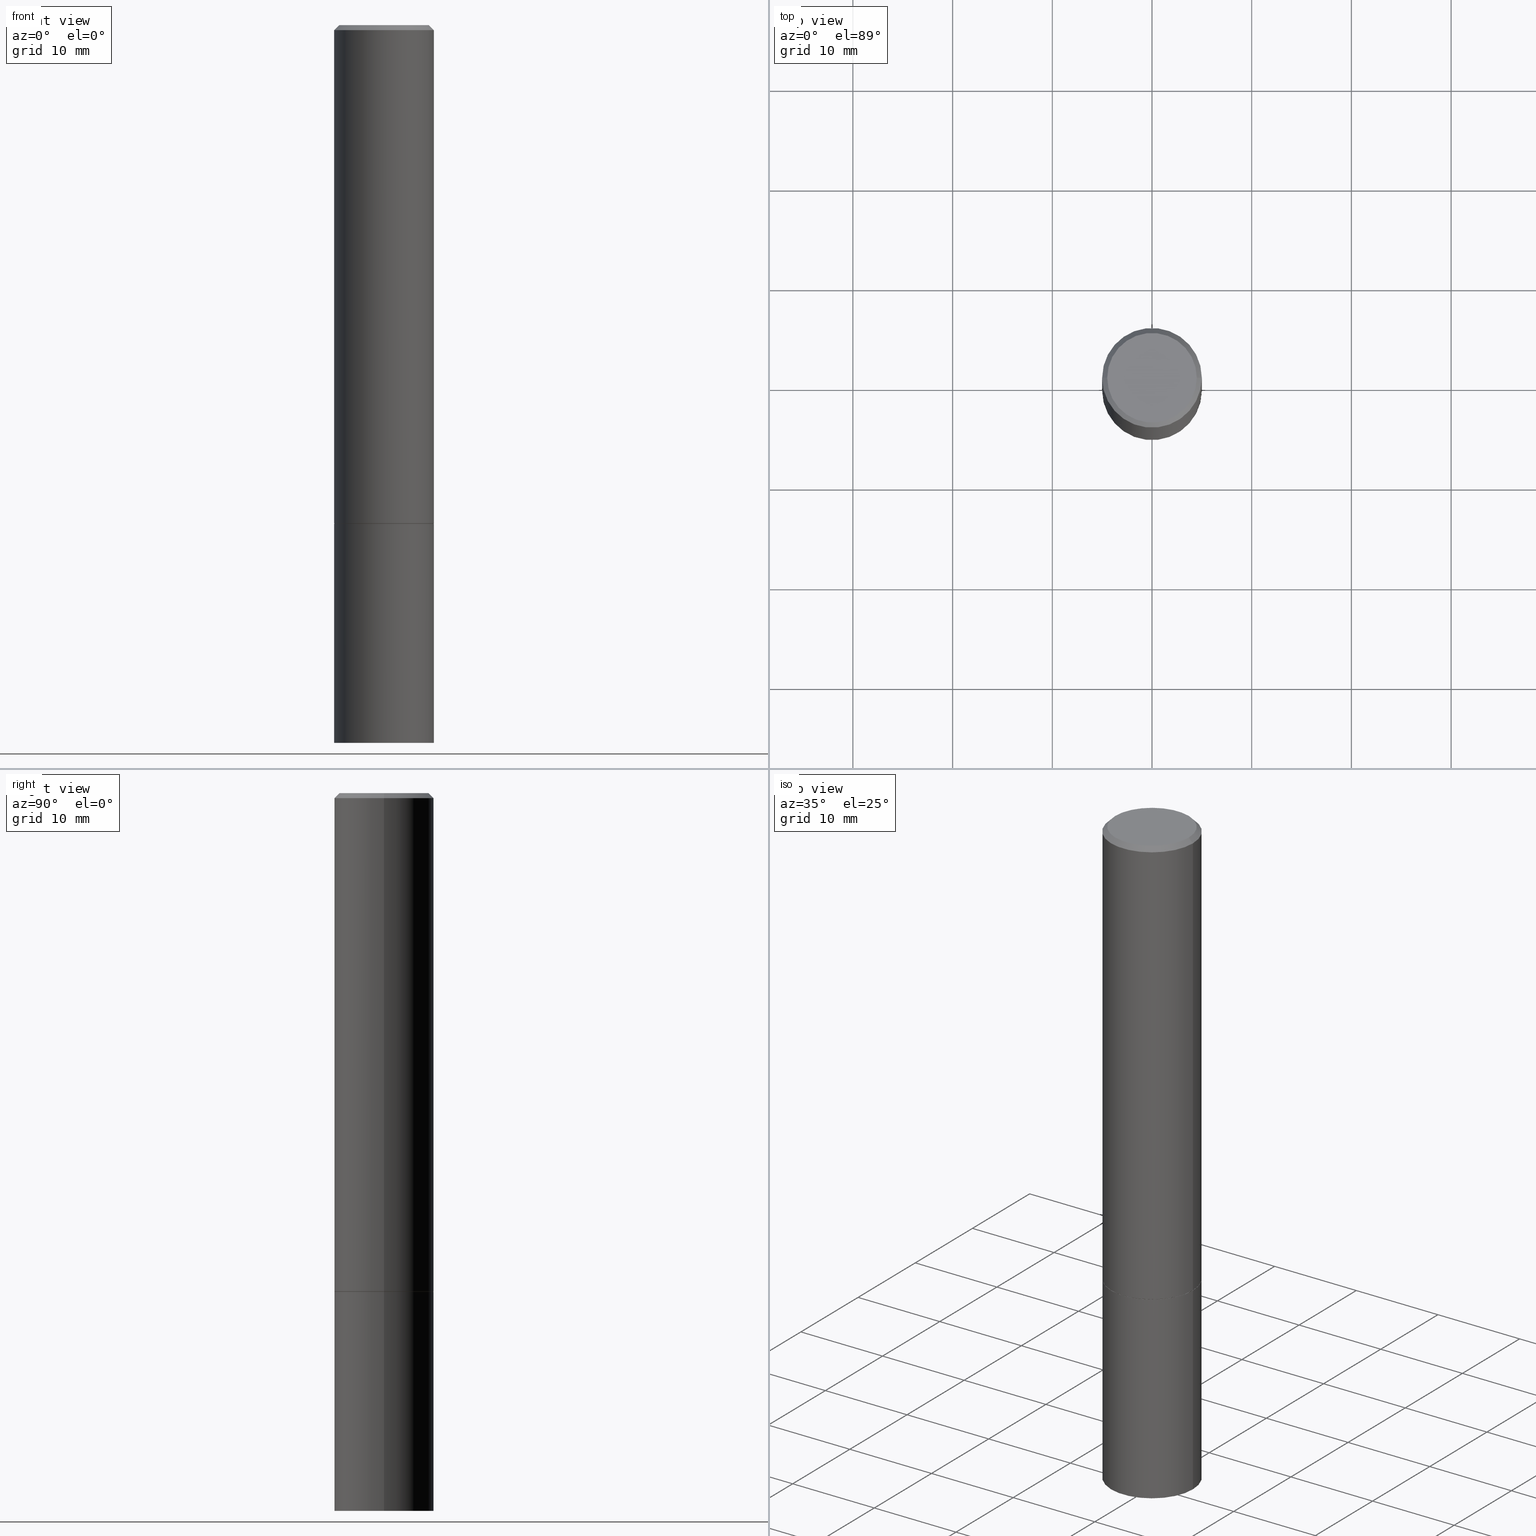
[diagram: canonical four-view strip — front | top / right | iso, engineering-drawing reading convention]
A machine part, canonical four-view strip (front | top / right | iso — engineering-drawing reading convention). The complete STEP part file that produces these views, byte-faithful:
ISO-10303-21;
HEADER;
FILE_DESCRIPTION (( 'STEP AP203' ),
    '1' );
FILE_NAME ('49668.STEP',
    '2024-02-29T00:50:35',
    ( '' ),
    ( '' ),
    'SwSTEP 2.0',
    'SolidWorks 2023',
    '' );
FILE_SCHEMA (( 'CONFIG_CONTROL_DESIGN' ));
ENDSEC;

DATA;
#1 = AXIS2_PLACEMENT_3D ( 'NONE', #68, #38, #275 ) ;
#2 = ORIENTED_EDGE ( 'NONE', *, *, #32, .F. ) ;
#3 = APPROVAL_ROLE ( '' ) ;
#4 = DIRECTION ( 'NONE',  ( 1.000000000000000000, 0.000000000000000000, 0.000000000000000000 ) ) ;
#5 = EDGE_LOOP ( 'NONE', ( #63, #207 ) ) ;
#6 = ORIENTED_EDGE ( 'NONE', *, *, #300, .T. ) ;
#7 = AXIS2_PLACEMENT_3D ( 'NONE', #18, #243, #100 ) ;
#8 = DATE_AND_TIME ( #269, #251 ) ;
#9 = ADVANCED_FACE ( 'NONE', ( #11 ), #43, .F. ) ;
#10 = ORIENTED_EDGE ( 'NONE', *, *, #32, .T. ) ;
#11 = FACE_OUTER_BOUND ( 'NONE', #210, .T. ) ;
#12 = APPROVAL_DATE_TIME ( #95, #277 ) ;
#13 = VERTEX_POINT ( 'NONE', #98 ) ;
#14 = CIRCLE ( 'NONE', #244, 0.1768499999999997019 ) ;
#15 = PERSON_AND_ORGANIZATION ( #254, #308 ) ;
#16 = ORIENTED_EDGE ( 'NONE', *, *, #205, .F. ) ;
#17 = ADVANCED_FACE ( 'NONE', ( #325 ), #163, .T. ) ;
#18 = CARTESIAN_POINT ( 'NONE',  ( 4.890937612370285420E-31, -6.982962677686308865E-17, -0.02000000000000005246 ) ) ;
#19 = ORIENTED_EDGE ( 'NONE', *, *, #362, .F. ) ;
#20 = CIRCLE ( 'NONE', #77, 0.1968500000000000250 ) ;
#21 = CYLINDRICAL_SURFACE ( 'NONE', #240, 0.1968500000000000250 ) ;
#22 = CARTESIAN_POINT ( 'NONE',  ( -0.1968500000000000250, -2.070956205131617028E-15, -1.967500000000000027 ) ) ;
#23 = DIRECTION ( 'NONE',  ( -2.445468806185136597E-29, 3.491481338843145583E-15, 1.000000000000000000 ) ) ;
#24 = VECTOR ( 'NONE', #65, 39.37007874015748854 ) ;
#25 = CARTESIAN_POINT ( 'NONE',  ( 0.1768499999999997019, -1.316798864272040366E-15, 8.537024980209745006E-18 ) ) ;
#26 = CARTESIAN_POINT ( 'NONE',  ( 0.1968499999999997474, -1.420318657638187347E-15, -0.02000000000000005246 ) ) ;
#27 = APPROVAL_ROLE ( '' ) ;
#28 = VERTEX_POINT ( 'NONE', #303 ) ;
#29 = CLOSED_SHELL ( 'NONE', ( #84, #264, #17, #124, #116, #159, #346, #211 ) ) ;
#30 = ORIENTED_EDGE ( 'NONE', *, *, #74, .F. ) ;
#31 = DESIGN_CONTEXT ( 'detailed design', #110, 'design' ) ;
#32 = EDGE_CURVE ( 'NONE', #263, #168, #14, .T. ) ;
#33 = APPROVAL_DATE_TIME ( #295, #61 ) ;
#34 = CLOSED_SHELL ( 'NONE', ( #200, #245, #9, #319 ) ) ;
#35 = PERSON_AND_ORGANIZATION_ROLE ( 'design_supplier' ) ;
#36 = LINE ( 'NONE', #69, #24 ) ;
#37 = SHAPE_DEFINITION_REPRESENTATION ( #351, #49 ) ;
#38 = DIRECTION ( 'NONE',  ( -2.445468806185136597E-29, 3.491481338843145583E-15, 1.000000000000000000 ) ) ;
#39 = PRODUCT ( '49668', '49668', '', ( #231 ) ) ;
#40 = CARTESIAN_POINT ( 'NONE',  ( 4.813905344975441835E-29, -6.872981015512731707E-15, -1.968500000000000139 ) ) ;
#41 = AXIS2_PLACEMENT_3D ( 'NONE', #160, #109, #194 ) ;
#42 = DIRECTION ( 'NONE',  ( 1.000000000000000000, -6.982962677686268288E-15, 4.875932113059886416E-29 ) ) ;
#43 = PLANE ( 'NONE',  #267 ) ;
#44 = LINE ( 'NONE', #53, #274 ) ;
#45 = CIRCLE ( 'NONE', #7, 0.1968499999999997474 ) ;
#46 = DIRECTION ( 'NONE',  ( -2.445468806185136597E-29, 3.491481338843145583E-15, 1.000000000000000000 ) ) ;
#47 = CARTESIAN_POINT ( 'NONE',  ( -0.1968500000000000250, -6.986263633954999297E-15, -1.968500000000000139 ) ) ;
#48 = CARTESIAN_POINT ( 'NONE',  ( 4.811459876169256232E-29, -6.869489534173888700E-15, -1.967500000000000027 ) ) ;
#49 = ADVANCED_BREP_SHAPE_REPRESENTATION ( '49668', ( #83, #322, #222 ), #259 ) ;
#50 = EDGE_CURVE ( 'NONE', #182, #175, #36, .T. ) ;
#51 = CIRCLE ( 'NONE', #250, 0.1968500000000000250 ) ;
#52 = VECTOR ( 'NONE', #85, 39.37007874015748143 ) ;
#53 = CARTESIAN_POINT ( 'NONE',  ( 0.1968499999999997474, -1.420318657638187347E-15, -0.02000000000000005246 ) ) ;
#54 = LENGTH_MEASURE_WITH_UNIT ( LENGTH_MEASURE( 0.02539999999999999897 ), #366 );
#55 = APPROVAL_STATUS ( 'not_yet_approved' ) ;
#56 = DIRECTION ( 'NONE',  ( 1.000000000000000000, -6.982962677686265922E-15, 4.876176775795935793E-29 ) ) ;
#57 = CONICAL_SURFACE ( 'NONE', #66, 0.1958499999999999963, 0.7853981633974141952 ) ;
#58 = AXIS2_PLACEMENT_3D ( 'NONE', #99, #96, #304 ) ;
#59 = DIRECTION ( 'NONE',  ( -2.445468806185136597E-29, 3.491481338843145583E-15, 1.000000000000000000 ) ) ;
#60 = EDGE_LOOP ( 'NONE', ( #90, #270, #155, #338 ) ) ;
#61 = APPROVAL ( #55, 'UNSPECIFIED' ) ;
#62 = CALENDAR_DATE ( 2024, 28, 2 ) ;
#63 = ORIENTED_EDGE ( 'NONE', *, *, #97, .F. ) ;
#64 = PERSON_AND_ORGANIZATION_ROLE ( 'creator' ) ;
#65 = DIRECTION ( 'NONE',  ( -0.7071067811865232589, 7.493145998870265808E-15, 0.7071067811865715536 ) ) ;
#66 = AXIS2_PLACEMENT_3D ( 'NONE', #156, #216, #298 ) ;
#67 = CC_DESIGN_APPROVAL ( #365, ( #356 ) ) ;
#68 = CARTESIAN_POINT ( 'NONE',  ( 4.813905344975441835E-29, -6.872981015512731707E-15, -1.968500000000000139 ) ) ;
#69 = CARTESIAN_POINT ( 'NONE',  ( -0.1958499999999999963, -5.481383067526575717E-15, -1.968500000000000139 ) ) ;
#70 = DIRECTION ( 'NONE',  ( -2.445468806185136597E-29, 3.491481338843145583E-15, 1.000000000000000000 ) ) ;
#71 = AXIS2_PLACEMENT_3D ( 'NONE', #40, #357, #123 ) ;
#72 = LOCAL_TIME ( 19, 50, 35.00000000000000000, #178 ) ;
#73 = DIRECTION ( 'NONE',  ( -2.445468806185136877E-29, 3.491481338843145188E-15, 1.000000000000000000 ) ) ;
#74 = EDGE_CURVE ( 'NONE', #113, #294, #185, .T. ) ;
#75 = DIRECTION ( 'NONE',  ( 1.000000000000000000, -6.982962677686268288E-15, 4.875932113059886416E-29 ) ) ;
#76 = LINE ( 'NONE', #135, #258 ) ;
#77 = AXIS2_PLACEMENT_3D ( 'NONE', #48, #162, #166 ) ;
#78 = DIRECTION ( 'NONE',  ( -2.445468806185136597E-29, 3.491481338843145583E-15, 1.000000000000000000 ) ) ;
#79 = CARTESIAN_POINT ( 'NONE',  ( 4.813905344975441835E-29, -6.872981015512731707E-15, -1.968500000000000139 ) ) ;
#80 = DIRECTION ( 'NONE',  ( -2.445468806185136597E-29, 3.491481338843145583E-15, 1.000000000000000000 ) ) ;
#81 = CIRCLE ( 'NONE', #221, 0.1958499999999999963 ) ;
#82 = PERSON_AND_ORGANIZATION ( #254, #308 ) ;
#83 = MANIFOLD_SOLID_BREP ( 'Body-Move/Copy2[1]', #34 ) ;
#84 = ADVANCED_FACE ( 'NONE', ( #276 ), #158, .T. ) ;
#85 = DIRECTION ( 'NONE',  ( -2.445468806185136877E-29, 3.491481338843145188E-15, 1.000000000000000000 ) ) ;
#86 = ORIENTED_EDGE ( 'NONE', *, *, #252, .T. ) ;
#87 = PLANE ( 'NONE',  #187 ) ;
#88 = ORIENTED_EDGE ( 'NONE', *, *, #50, .T. ) ;
#89 = CARTESIAN_POINT ( 'NONE',  ( -0.1968500000000000250, -6.986263633954999297E-15, -2.834600000000000009 ) ) ;
#90 = ORIENTED_EDGE ( 'NONE', *, *, #287, .F. ) ;
#91 = COORDINATED_UNIVERSAL_TIME_OFFSET ( 5, 0, .BEHIND. ) ;
#92 = ORIENTED_EDGE ( 'NONE', *, *, #359, .F. ) ;
#93 = COORDINATED_UNIVERSAL_TIME_OFFSET ( 5, 0, .BEHIND. ) ;
#94 = ORIENTED_EDGE ( 'NONE', *, *, #138, .T. ) ;
#95 = DATE_AND_TIME ( #181, #233 ) ;
#96 = DIRECTION ( 'NONE',  ( 2.445468806185136597E-29, -3.491481338843145583E-15, -1.000000000000000000 ) ) ;
#97 = EDGE_CURVE ( 'NONE', #266, #182, #81, .T. ) ;
#98 = CARTESIAN_POINT ( 'NONE',  ( 0.1968500000000000250, -1.127154920618732249E-14, -2.834600000000000009 ) ) ;
#99 = CARTESIAN_POINT ( 'NONE',  ( 4.890937612370285420E-31, -6.982962677686308865E-17, -0.02000000000000005246 ) ) ;
#100 = DIRECTION ( 'NONE',  ( 1.000000000000000000, -6.982962677686266711E-15, 0.000000000000000000 ) ) ;
#101 = AXIS2_PLACEMENT_3D ( 'NONE', #223, #253, #330 ) ;
#102 = CC_DESIGN_APPROVAL ( #277, ( #317 ) ) ;
#103 = CARTESIAN_POINT ( 'NONE',  ( 0.1968500000000000250, -8.247577218615273316E-15, -1.968500000000000139 ) ) ;
#104 = DIRECTION ( 'NONE',  ( 1.000000000000000000, -6.982962677686265922E-15, 4.876176775795935793E-29 ) ) ;
#105 = FACE_OUTER_BOUND ( 'NONE', #131, .T. ) ;
#106 = AXIS2_PLACEMENT_3D ( 'NONE', #364, #360, #75 ) ;
#107 = CC_DESIGN_DATE_AND_TIME_ASSIGNMENT ( #206, #125, ( #356 ) ) ;
#108 = FACE_OUTER_BOUND ( 'NONE', #329, .T. ) ;
#109 = DIRECTION ( 'NONE',  ( -2.445468806185136597E-29, 3.491481338843145583E-15, 1.000000000000000000 ) ) ;
#110 = APPLICATION_CONTEXT ( 'configuration controlled 3d designs of mechanical parts and assemblies' ) ;
#111 = CARTESIAN_POINT ( 'NONE',  ( 0.000000000000000000, 0.000000000000000000, 0.000000000000000000 ) ) ;
#112 = CARTESIAN_POINT ( 'NONE',  ( 0.1968500000000000250, -1.374596203102541608E-15, 9.598753983154300858E-30 ) ) ;
#113 = VERTEX_POINT ( 'NONE', #103 ) ;
#114 = DIRECTION ( 'NONE',  ( 1.000000000000000000, -6.982962677686266711E-15, 0.000000000000000000 ) ) ;
#115 = ORIENTED_EDGE ( 'NONE', *, *, #74, .T. ) ;
#116 = ADVANCED_FACE ( 'NONE', ( #347 ), #151, .T. ) ;
#117 = APPLICATION_PROTOCOL_DEFINITION ( 'international standard', 'config_control_design', 1994, #110 ) ;
#118 = CIRCLE ( 'NONE', #106, 0.1768499999999997019 ) ;
#119 = LOCAL_TIME ( 19, 50, 35.00000000000000000, #93 ) ;
#120 = EDGE_LOOP ( 'NONE', ( #228, #86, #122, #230 ) ) ;
#121 = PERSON_AND_ORGANIZATION ( #254, #308 ) ;
#122 = ORIENTED_EDGE ( 'NONE', *, *, #332, .T. ) ;
#123 = DIRECTION ( 'NONE',  ( 1.000000000000000000, -6.982962677686267499E-15, 0.000000000000000000 ) ) ;
#124 = ADVANCED_FACE ( 'NONE', ( #352 ), #342, .T. ) ;
#125 = DATE_TIME_ROLE ( 'classification_date' ) ;
#126 = ORIENTED_EDGE ( 'NONE', *, *, #224, .T. ) ;
#127 = AXIS2_PLACEMENT_3D ( 'NONE', #79, #78, #280 ) ;
#128 = CC_DESIGN_APPROVAL ( #61, ( #130 ) ) ;
#129 = DIRECTION ( 'NONE',  ( -2.445468806185136597E-29, 3.491481338843145583E-15, 1.000000000000000000 ) ) ;
#130 = PRODUCT_DEFINITION ( 'UNKNOWN', '', #317, #31 ) ;
#131 = EDGE_LOOP ( 'NONE', ( #209, #289 ) ) ;
#132 = ORIENTED_EDGE ( 'NONE', *, *, #217, .T. ) ;
#133 = CIRCLE ( 'NONE', #41, 0.1968500000000000250 ) ;
#134 = CARTESIAN_POINT ( 'NONE',  ( 0.000000000000000000, 0.000000000000000000, 0.000000000000000000 ) ) ;
#135 = CARTESIAN_POINT ( 'NONE',  ( 0.1958499999999999963, -8.240594255937587301E-15, -1.968500000000000139 ) ) ;
#136 = CARTESIAN_POINT ( 'NONE',  ( 6.931925878012387517E-29, -9.896953003084780885E-15, -2.834600000000000009 ) ) ;
#137 = PLANE ( 'NONE',  #101 ) ;
#138 = EDGE_CURVE ( 'NONE', #28, #236, #45, .T. ) ;
#139 = DIRECTION ( 'NONE',  ( -2.445468806185136597E-29, 3.491481338843145583E-15, 1.000000000000000000 ) ) ;
#140 = COORDINATED_UNIVERSAL_TIME_OFFSET ( 5, 0, .BEHIND. ) ;
#141 = AXIS2_PLACEMENT_3D ( 'NONE', #293, #59, #114 ) ;
#142 = PERSON_AND_ORGANIZATION ( #254, #308 ) ;
#143 = ORIENTED_EDGE ( 'NONE', *, *, #235, .T. ) ;
#144 = DIRECTION ( 'NONE',  ( -2.445468806185136877E-29, 3.491481338843145188E-15, 1.000000000000000000 ) ) ;
#145 = EDGE_LOOP ( 'NONE', ( #246, #88, #343, #301 ) ) ;
#146 = PERSON_AND_ORGANIZATION_ROLE ( 'creator' ) ;
#147 = AXIS2_PLACEMENT_3D ( 'NONE', #136, #46, #249 ) ;
#148 = DATE_AND_TIME ( #299, #72 ) ;
#149 = EDGE_CURVE ( 'NONE', #175, #28, #215, .T. ) ;
#150 = DIRECTION ( 'NONE',  ( 2.438088387897960049E-29, -3.491481338843145188E-15, -1.000000000000000000 ) ) ;
#151 = CYLINDRICAL_SURFACE ( 'NONE', #214, 0.1968499999999998862 ) ;
#152 = AXIS2_PLACEMENT_3D ( 'NONE', #111, #139, #255 ) ;
#153 = ORIENTED_EDGE ( 'NONE', *, *, #252, .F. ) ;
#154 = APPROVAL_STATUS ( 'not_yet_approved' ) ;
#155 = ORIENTED_EDGE ( 'NONE', *, *, #353, .T. ) ;
#156 = CARTESIAN_POINT ( 'NONE',  ( 4.813905344975441835E-29, -6.872981015512731707E-15, -1.968500000000000139 ) ) ;
#157 = DIRECTION ( 'NONE',  ( 1.000000000000000000, -6.982962677686267499E-15, 0.000000000000000000 ) ) ;
#158 = CONICAL_SURFACE ( 'NONE', #1, 0.1958499999999999963, 0.7853981633974141952 ) ;
#159 = ADVANCED_FACE ( 'NONE', ( #190 ), #57, .T. ) ;
#160 = CARTESIAN_POINT ( 'NONE',  ( 6.931925878012387517E-29, -9.896953003084780885E-15, -2.834600000000000009 ) ) ;
#161 = CARTESIAN_POINT ( 'NONE',  ( -0.1958499999999999963, -5.476084613178353315E-15, -1.968500000000000139 ) ) ;
#162 = DIRECTION ( 'NONE',  ( -2.445468806185136597E-29, 3.491481338843145583E-15, 1.000000000000000000 ) ) ;
#163 = CONICAL_SURFACE ( 'NONE', #170, 0.1968499999999997474, 0.7853981633974473908 ) ;
#164 = CC_DESIGN_PERSON_AND_ORGANIZATION_ASSIGNMENT ( #167, #146, ( #130 ) ) ;
#165 = APPROVAL_PERSON_ORGANIZATION ( #142, #61, #3 ) ;
#166 = DIRECTION ( 'NONE',  ( 1.000000000000000000, -6.982962677686267499E-15, 0.000000000000000000 ) ) ;
#167 = PERSON_AND_ORGANIZATION ( #254, #308 ) ;
#168 = VERTEX_POINT ( 'NONE', #25 ) ;
#169 = APPLICATION_PROTOCOL_DEFINITION ( 'international standard', 'config_control_design', 1994, #272 ) ;
#170 = AXIS2_PLACEMENT_3D ( 'NONE', #183, #241, #327 ) ;
#171 = EDGE_LOOP ( 'NONE', ( #320, #143, #132, #153 ) ) ;
#172 = CC_DESIGN_PERSON_AND_ORGANIZATION_ASSIGNMENT ( #324, #64, ( #317 ) ) ;
#173 = DIMENSIONAL_EXPONENTS ( 1.000000000000000000, 0.000000000000000000, 0.000000000000000000, 0.000000000000000000, 0.000000000000000000, 0.000000000000000000, 0.000000000000000000 ) ;
#174 = DIRECTION ( 'NONE',  ( -2.445468806185136877E-29, 3.491481338843145188E-15, 1.000000000000000000 ) ) ;
#175 = VERTEX_POINT ( 'NONE', #22 ) ;
#176 = CARTESIAN_POINT ( 'NONE',  ( 0.000000000000000000, 0.000000000000000000, 0.000000000000000000 ) ) ;
#177 = EDGE_LOOP ( 'NONE', ( #126, #292, #30, #92 ) ) ;
#178 = COORDINATED_UNIVERSAL_TIME_OFFSET ( 5, 0, .BEHIND. ) ;
#179 = CIRCLE ( 'NONE', #284, 0.1968500000000000250 ) ;
#180 = DIRECTION ( 'NONE',  ( -2.445468806185136597E-29, 3.491481338843145583E-15, 1.000000000000000000 ) ) ;
#181 = CALENDAR_DATE ( 2024, 28, 2 ) ;
#182 = VERTEX_POINT ( 'NONE', #161 ) ;
#183 = CARTESIAN_POINT ( 'NONE',  ( 4.890937612370285420E-31, -6.982962677686308865E-17, -0.02000000000000005246 ) ) ;
#184 = SECURITY_CLASSIFICATION_LEVEL ( 'unclassified' ) ;
#185 = CIRCLE ( 'NONE', #71, 0.1968500000000000250 ) ;
#186 = DIRECTION ( 'NONE',  ( 1.000000000000000000, -6.982962677686268288E-15, 0.000000000000000000 ) ) ;
#187 = AXIS2_PLACEMENT_3D ( 'NONE', #314, #234, #56 ) ;
#188 = EDGE_CURVE ( 'NONE', #263, #28, #220, .T. ) ;
#189 = APPROVAL_DATE_TIME ( #148, #365 ) ;
#190 = FACE_OUTER_BOUND ( 'NONE', #171, .T. ) ;
#191 = CARTESIAN_POINT ( 'NONE',  ( 4.813905344975441835E-29, -6.872981015512731707E-15, -1.968500000000000139 ) ) ;
#192 = CARTESIAN_POINT ( 'NONE',  ( 0.1958499999999999963, -8.240594255937587301E-15, -1.968500000000000139 ) ) ;
#193 = DIRECTION ( 'NONE',  ( -1.000000000000000000, 6.982962677686265922E-15, -4.876176775795935793E-29 ) ) ;
#194 = DIRECTION ( 'NONE',  ( 1.000000000000000000, -6.982962677686267499E-15, 0.000000000000000000 ) ) ;
#195 = CC_DESIGN_PERSON_AND_ORGANIZATION_ASSIGNMENT ( #256, #260, ( #39 ) ) ;
#196 = CYLINDRICAL_SURFACE ( 'NONE', #152, 0.1968499999999998862 ) ;
#197 = CC_DESIGN_SECURITY_CLASSIFICATION ( #356, ( #317 ) ) ;
#198 = LINE ( 'NONE', #112, #297 ) ;
#199 = LINE ( 'NONE', #315, #291 ) ;
#200 = ADVANCED_FACE ( 'NONE', ( #286 ), #333, .T. ) ;
#201 = EDGE_LOOP ( 'NONE', ( #19, #340, #316, #323 ) ) ;
#202 = EDGE_LOOP ( 'NONE', ( #321, #350, #204, #341 ) ) ;
#203 = UNCERTAINTY_MEASURE_WITH_UNIT (LENGTH_MEASURE( 1.000000000000000082E-05 ), #229, 'distance_accuracy_value', 'NONE');
#204 = ORIENTED_EDGE ( 'NONE', *, *, #353, .F. ) ;
#205 = EDGE_CURVE ( 'NONE', #168, #236, #44, .T. ) ;
#206 = DATE_AND_TIME ( #213, #119 ) ;
#207 = ORIENTED_EDGE ( 'NONE', *, *, #235, .F. ) ;
#208 = APPROVAL_PERSON_ORGANIZATION ( #82, #277, #27 ) ;
#209 = ORIENTED_EDGE ( 'NONE', *, *, #224, .F. ) ;
#210 = EDGE_LOOP ( 'NONE', ( #115, #6 ) ) ;
#211 = ADVANCED_FACE ( 'NONE', ( #108 ), #137, .F. ) ;
#212 = VERTEX_POINT ( 'NONE', #334 ) ;
#213 = CALENDAR_DATE ( 2024, 28, 2 ) ;
#214 = AXIS2_PLACEMENT_3D ( 'NONE', #273, #129, #242 ) ;
#215 = LINE ( 'NONE', #305, #296 ) ;
#216 = DIRECTION ( 'NONE',  ( -2.445468806185136597E-29, 3.491481338843145583E-15, 1.000000000000000000 ) ) ;
#217 = EDGE_CURVE ( 'NONE', #266, #212, #76, .T. ) ;
#218 = CC_DESIGN_PERSON_AND_ORGANIZATION_ASSIGNMENT ( #121, #35, ( #317 ) ) ;
#219 = DIRECTION ( 'NONE',  ( -0.7071067811865469066, 2.468850131082250355E-15, -0.7071067811865481278 ) ) ;
#220 = LINE ( 'NONE', #361, #348 ) ;
#221 = AXIS2_PLACEMENT_3D ( 'NONE', #238, #180, #186 ) ;
#222 = AXIS2_PLACEMENT_3D ( 'NONE', #176, #262, #4 ) ;
#223 = CARTESIAN_POINT ( 'NONE',  ( 1.234936949548814026E-15, 0.1768499999999997019, -6.131999622843089528E-16 ) ) ;
#224 = EDGE_CURVE ( 'NONE', #13, #345, #133, .T. ) ;
#225 = CARTESIAN_POINT ( 'NONE',  ( 1.374596203102610831E-15, 0.1968499999999901162, -2.834600000000000453 ) ) ;
#226 = COORDINATED_UNIVERSAL_TIME_OFFSET ( 5, 0, .BEHIND. ) ;
#227 = FACE_OUTER_BOUND ( 'NONE', #5, .T. ) ;
#228 = ORIENTED_EDGE ( 'NONE', *, *, #149, .F. ) ;
#229 =( CONVERSION_BASED_UNIT ( 'INCH', #54 ) LENGTH_UNIT ( ) NAMED_UNIT ( #173 ) );
#230 = ORIENTED_EDGE ( 'NONE', *, *, #138, .F. ) ;
#231 = MECHANICAL_CONTEXT ( 'NONE', #272, 'mechanical' ) ;
#232 = AXIS2_PLACEMENT_3D ( 'NONE', #311, #80, #104 ) ;
#233 = LOCAL_TIME ( 19, 50, 35.00000000000000000, #140 ) ;
#234 = DIRECTION ( 'NONE',  ( -2.438088387897960049E-29, 3.491481338843145188E-15, 1.000000000000000000 ) ) ;
#235 = EDGE_CURVE ( 'NONE', #182, #266, #239, .T. ) ;
#236 = VERTEX_POINT ( 'NONE', #26 ) ;
#237 = ORIENTED_EDGE ( 'NONE', *, *, #287, .T. ) ;
#238 = CARTESIAN_POINT ( 'NONE',  ( 4.813905344975441835E-29, -6.872981015512731707E-15, -1.968500000000000139 ) ) ;
#239 = CIRCLE ( 'NONE', #127, 0.1958499999999999963 ) ;
#240 = AXIS2_PLACEMENT_3D ( 'NONE', #134, #23, #331 ) ;
#241 = DIRECTION ( 'NONE',  ( 2.445468806185136597E-29, -3.491481338843145583E-15, -1.000000000000000000 ) ) ;
#242 = DIRECTION ( 'NONE',  ( 1.000000000000000000, -6.982962677686266711E-15, 4.876176775795935793E-29 ) ) ;
#243 = DIRECTION ( 'NONE',  ( -2.445468806185136597E-29, 3.491481338843145583E-15, 1.000000000000000000 ) ) ;
#244 = AXIS2_PLACEMENT_3D ( 'NONE', #271, #70, #42 ) ;
#245 = ADVANCED_FACE ( 'NONE', ( #105 ), #335, .T. ) ;
#246 = ORIENTED_EDGE ( 'NONE', *, *, #97, .T. ) ;
#247 = DIRECTION ( 'NONE',  ( 0.7071067811865232589, -2.468850131082003836E-15, 0.7071067811865715536 ) ) ;
#248 = CARTESIAN_POINT ( 'NONE',  ( 4.811459876169256232E-29, -6.869489534173888700E-15, -1.967500000000000027 ) ) ;
#249 = DIRECTION ( 'NONE',  ( 1.000000000000000000, -6.982962677686267499E-15, 0.000000000000000000 ) ) ;
#250 = AXIS2_PLACEMENT_3D ( 'NONE', #191, #306, #157 ) ;
#251 = LOCAL_TIME ( 19, 50, 35.00000000000000000, #226 ) ;
#252 = EDGE_CURVE ( 'NONE', #175, #212, #179, .T. ) ;
#253 = DIRECTION ( 'NONE',  ( 2.438088387897960049E-29, -3.491481338843145188E-15, -1.000000000000000000 ) ) ;
#254 = PERSON ( 'UNSPECIFIED', 'UNSPECIFIED', 'UNSPECIFIED', ('UNSPECIFIED'), ('UNSPECIFIED'), ('UNSPECIFIED') ) ;
#255 = DIRECTION ( 'NONE',  ( 1.000000000000000000, -6.982962677686266711E-15, 4.876176775795935793E-29 ) ) ;
#256 = PERSON_AND_ORGANIZATION ( #254, #308 ) ;
#257 = EDGE_CURVE ( 'NONE', #212, #175, #20, .T. ) ;
#258 = VECTOR ( 'NONE', #247, 39.37007874015748854 ) ;
#259 =( GEOMETRIC_REPRESENTATION_CONTEXT ( 3 ) GLOBAL_UNCERTAINTY_ASSIGNED_CONTEXT ( ( #203 ) ) GLOBAL_UNIT_ASSIGNED_CONTEXT ( ( #229, #265, #318 ) ) REPRESENTATION_CONTEXT ( 'NONE', 'WORKASPACE' ) );
#260 = PERSON_AND_ORGANIZATION_ROLE ( 'design_owner' ) ;
#261 = EDGE_LOOP ( 'NONE', ( #16, #2, #290, #94 ) ) ;
#262 = DIRECTION ( 'NONE',  ( 0.000000000000000000, 0.000000000000000000, 1.000000000000000000 ) ) ;
#263 = VERTEX_POINT ( 'NONE', #363 ) ;
#264 = ADVANCED_FACE ( 'NONE', ( #283 ), #196, .T. ) ;
#265 =( NAMED_UNIT ( * ) PLANE_ANGLE_UNIT ( ) SI_UNIT ( $, .RADIAN. ) );
#266 = VERTEX_POINT ( 'NONE', #192 ) ;
#267 = AXIS2_PLACEMENT_3D ( 'NONE', #354, #150, #279 ) ;
#268 = APPROVAL_PERSON_ORGANIZATION ( #349, #365, #302 ) ;
#269 = CALENDAR_DATE ( 2024, 28, 2 ) ;
#270 = ORIENTED_EDGE ( 'NONE', *, *, #205, .T. ) ;
#271 = CARTESIAN_POINT ( 'NONE',  ( -2.087702828670439639E-46, 2.980686340760894400E-32, 8.537024980200822558E-18 ) ) ;
#272 = APPLICATION_CONTEXT ( 'configuration controlled 3d designs of mechanical parts and assemblies' ) ;
#273 = CARTESIAN_POINT ( 'NONE',  ( 0.000000000000000000, 0.000000000000000000, 0.000000000000000000 ) ) ;
#274 = VECTOR ( 'NONE', #282, 39.37007874015748143 ) ;
#275 = DIRECTION ( 'NONE',  ( 1.000000000000000000, -6.982962677686268288E-15, 0.000000000000000000 ) ) ;
#276 = FACE_OUTER_BOUND ( 'NONE', #145, .T. ) ;
#277 = APPROVAL ( #288, 'UNSPECIFIED' ) ;
#278 = PRODUCT_RELATED_PRODUCT_CATEGORY ( 'detail', '', ( #39 ) ) ;
#279 = DIRECTION ( 'NONE',  ( -1.000000000000000000, 6.982962677686265922E-15, -4.876176775795935793E-29 ) ) ;
#280 = DIRECTION ( 'NONE',  ( 1.000000000000000000, -6.982962677686268288E-15, 0.000000000000000000 ) ) ;
#281 = LINE ( 'NONE', #339, #52 ) ;
#282 = DIRECTION ( 'NONE',  ( 0.7071067811865469066, -7.319954787623254468E-15, -0.7071067811865481278 ) ) ;
#283 = FACE_OUTER_BOUND ( 'NONE', #202, .T. ) ;
#284 = AXIS2_PLACEMENT_3D ( 'NONE', #248, #310, #309 ) ;
#285 = LOCAL_TIME ( 19, 50, 35.00000000000000000, #91 ) ;
#286 = FACE_OUTER_BOUND ( 'NONE', #177, .T. ) ;
#287 = EDGE_CURVE ( 'NONE', #168, #263, #118, .T. ) ;
#288 = APPROVAL_STATUS ( 'not_yet_approved' ) ;
#289 = ORIENTED_EDGE ( 'NONE', *, *, #326, .F. ) ;
#290 = ORIENTED_EDGE ( 'NONE', *, *, #188, .T. ) ;
#291 = VECTOR ( 'NONE', #174, 39.37007874015748143 ) ;
#292 = ORIENTED_EDGE ( 'NONE', *, *, #362, .T. ) ;
#293 = CARTESIAN_POINT ( 'NONE',  ( 4.890937612370285420E-31, -6.982962677686308865E-17, -0.02000000000000005246 ) ) ;
#294 = VERTEX_POINT ( 'NONE', #47 ) ;
#295 = DATE_AND_TIME ( #62, #285 ) ;
#296 = VECTOR ( 'NONE', #73, 39.37007874015748143 ) ;
#297 = VECTOR ( 'NONE', #144, 39.37007874015748143 ) ;
#298 = DIRECTION ( 'NONE',  ( 1.000000000000000000, -6.982962677686268288E-15, 0.000000000000000000 ) ) ;
#299 = CALENDAR_DATE ( 2024, 28, 2 ) ;
#300 = EDGE_CURVE ( 'NONE', #294, #113, #51, .T. ) ;
#301 = ORIENTED_EDGE ( 'NONE', *, *, #217, .F. ) ;
#302 = APPROVAL_ROLE ( '' ) ;
#303 = CARTESIAN_POINT ( 'NONE',  ( -0.1968499999999997474, 1.304766576325676732E-15, -0.02000000000000005246 ) ) ;
#304 = DIRECTION ( 'NONE',  ( -1.000000000000000000, 6.982962677686266711E-15, 0.000000000000000000 ) ) ;
#305 = CARTESIAN_POINT ( 'NONE',  ( -0.1968499999999998862, 1.398703375343756407E-15, -9.682923725166776671E-30 ) ) ;
#306 = DIRECTION ( 'NONE',  ( -2.445468806185136597E-29, 3.491481338843145583E-15, 1.000000000000000000 ) ) ;
#307 = FACE_OUTER_BOUND ( 'NONE', #201, .T. ) ;
#308 = ORGANIZATION ( 'UNSPECIFIED', 'UNSPECIFIED', '' ) ;
#309 = DIRECTION ( 'NONE',  ( 1.000000000000000000, -6.982962677686267499E-15, 0.000000000000000000 ) ) ;
#310 = DIRECTION ( 'NONE',  ( -2.445468806185136597E-29, 3.491481338843145583E-15, 1.000000000000000000 ) ) ;
#311 = CARTESIAN_POINT ( 'NONE',  ( 0.000000000000000000, 0.000000000000000000, 0.000000000000000000 ) ) ;
#312 = AXIS2_PLACEMENT_3D ( 'NONE', #225, #358, #193 ) ;
#313 = CIRCLE ( 'NONE', #141, 0.1968499999999997474 ) ;
#314 = CARTESIAN_POINT ( 'NONE',  ( 4.813905344975441835E-29, -6.872981015512731707E-15, -1.968500000000000139 ) ) ;
#315 = CARTESIAN_POINT ( 'NONE',  ( -0.1968500000000000250, 1.398703375343757393E-15, -9.682923725166783677E-30 ) ) ;
#316 = ORIENTED_EDGE ( 'NONE', *, *, #359, .T. ) ;
#317 = PRODUCT_DEFINITION_FORMATION_WITH_SPECIFIED_SOURCE ( 'ANY', '', #39, .NOT_KNOWN. ) ;
#318 =( NAMED_UNIT ( * ) SI_UNIT ( $, .STERADIAN. ) SOLID_ANGLE_UNIT ( ) );
#319 = ADVANCED_FACE ( 'NONE', ( #307 ), #21, .T. ) ;
#320 = ORIENTED_EDGE ( 'NONE', *, *, #50, .F. ) ;
#321 = ORIENTED_EDGE ( 'NONE', *, *, #257, .T. ) ;
#322 = MANIFOLD_SOLID_BREP ( 'Body-Move/Copy2[2]', #29 ) ;
#323 = ORIENTED_EDGE ( 'NONE', *, *, #300, .F. ) ;
#324 = PERSON_AND_ORGANIZATION ( #254, #308 ) ;
#325 = FACE_OUTER_BOUND ( 'NONE', #60, .T. ) ;
#326 = EDGE_CURVE ( 'NONE', #345, #13, #328, .T. ) ;
#327 = DIRECTION ( 'NONE',  ( -1.000000000000000000, 6.982962677686266711E-15, 0.000000000000000000 ) ) ;
#328 = CIRCLE ( 'NONE', #147, 0.1968500000000000250 ) ;
#329 = EDGE_LOOP ( 'NONE', ( #10, #237 ) ) ;
#330 = DIRECTION ( 'NONE',  ( -1.000000000000000000, 6.982962677686265922E-15, -4.876176775795935793E-29 ) ) ;
#331 = DIRECTION ( 'NONE',  ( 1.000000000000000000, -6.982962677686265922E-15, 4.876176775795935793E-29 ) ) ;
#332 = EDGE_CURVE ( 'NONE', #212, #236, #281, .T. ) ;
#333 = CYLINDRICAL_SURFACE ( 'NONE', #232, 0.1968500000000000250 ) ;
#334 = CARTESIAN_POINT ( 'NONE',  ( 0.1968500000000000250, -8.244085737276430308E-15, -1.967500000000000027 ) ) ;
#335 = PLANE ( 'NONE',  #312 ) ;
#336 = CC_DESIGN_DATE_AND_TIME_ASSIGNMENT ( #8, #337, ( #130 ) ) ;
#337 = DATE_TIME_ROLE ( 'creation_date' ) ;
#338 = ORIENTED_EDGE ( 'NONE', *, *, #188, .F. ) ;
#339 = CARTESIAN_POINT ( 'NONE',  ( 0.1968499999999998862, -1.374596203102540819E-15, 9.598753983154293852E-30 ) ) ;
#340 = ORIENTED_EDGE ( 'NONE', *, *, #326, .T. ) ;
#341 = ORIENTED_EDGE ( 'NONE', *, *, #332, .F. ) ;
#342 = CONICAL_SURFACE ( 'NONE', #58, 0.1968499999999997474, 0.7853981633974473908 ) ;
#343 = ORIENTED_EDGE ( 'NONE', *, *, #257, .F. ) ;
#344 = PERSON_AND_ORGANIZATION_ROLE ( 'classification_officer' ) ;
#345 = VERTEX_POINT ( 'NONE', #89 ) ;
#346 = ADVANCED_FACE ( 'NONE', ( #227 ), #87, .F. ) ;
#347 = FACE_OUTER_BOUND ( 'NONE', #120, .T. ) ;
#348 = VECTOR ( 'NONE', #219, 39.37007874015748143 ) ;
#349 = PERSON_AND_ORGANIZATION ( #254, #308 ) ;
#350 = ORIENTED_EDGE ( 'NONE', *, *, #149, .T. ) ;
#351 = PRODUCT_DEFINITION_SHAPE ( 'NONE', 'NONE',  #130 ) ;
#352 = FACE_OUTER_BOUND ( 'NONE', #261, .T. ) ;
#353 = EDGE_CURVE ( 'NONE', #236, #28, #313, .T. ) ;
#354 = CARTESIAN_POINT ( 'NONE',  ( 1.374596203102589532E-15, 0.1968499999999931416, -1.968500000000000805 ) ) ;
#355 = CC_DESIGN_PERSON_AND_ORGANIZATION_ASSIGNMENT ( #15, #344, ( #356 ) ) ;
#356 = SECURITY_CLASSIFICATION ( '', '', #184 ) ;
#357 = DIRECTION ( 'NONE',  ( -2.445468806185136597E-29, 3.491481338843145583E-15, 1.000000000000000000 ) ) ;
#358 = DIRECTION ( 'NONE',  ( 2.438088387897960049E-29, -3.491481338843145188E-15, -1.000000000000000000 ) ) ;
#359 = EDGE_CURVE ( 'NONE', #13, #113, #198, .T. ) ;
#360 = DIRECTION ( 'NONE',  ( -2.445468806185136597E-29, 3.491481338843145583E-15, 1.000000000000000000 ) ) ;
#361 = CARTESIAN_POINT ( 'NONE',  ( -0.1968499999999997474, 1.304766576325676732E-15, -0.02000000000000005246 ) ) ;
#362 = EDGE_CURVE ( 'NONE', #345, #294, #199, .T. ) ;
#363 = CARTESIAN_POINT ( 'NONE',  ( -0.1768499999999997019, 1.269851762937245478E-15, 8.537024980192063428E-18 ) ) ;
#364 = CARTESIAN_POINT ( 'NONE',  ( -2.087702828670439639E-46, 2.980686340760894400E-32, 8.537024980200822558E-18 ) ) ;
#365 = APPROVAL ( #154, 'UNSPECIFIED' ) ;
#366 =( LENGTH_UNIT ( ) NAMED_UNIT ( * ) SI_UNIT ( $, .METRE. ) );
ENDSEC;
END-ISO-10303-21;
